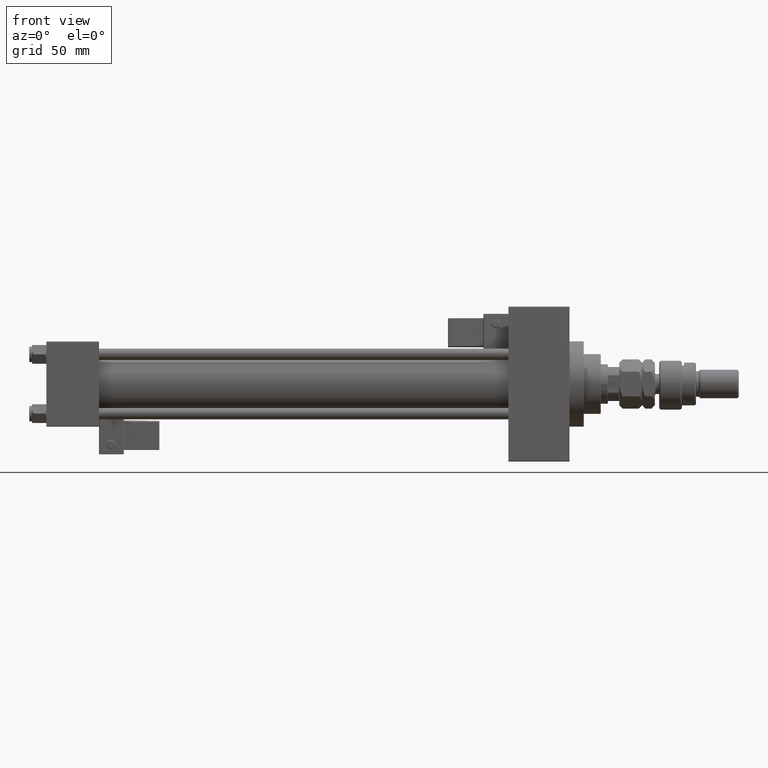
[diagram: clean part render]
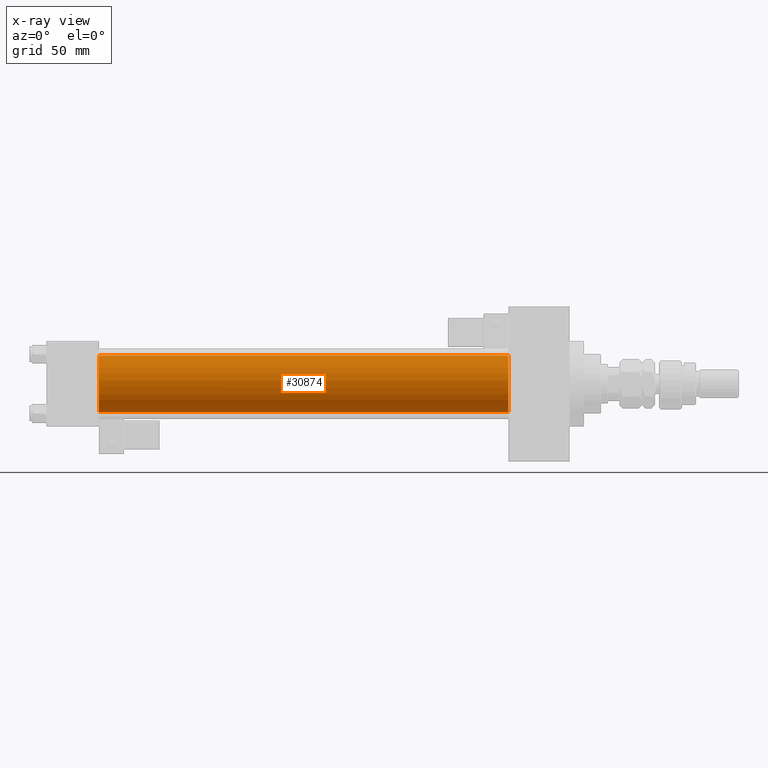
[diagram: x-ray — body ghosted, one internal face saturated and labeled with its STEP entity id]
A machine part, front view, then the same camera in x-ray: the body is ghosted and one INTERNAL B-rep face — a face not visible from any outside direction — is saturated and labeled: STEP entity #30874.
In plain terms, the highlighted cylindrical surface (edge-blend (fillet) strip) has radius 20 mm, axis along (-1, -0, -0).
Its self-contained STEP definition (entity closure, byte-faithful):
#410 = AXIS2_PLACEMENT_3D ( 'NONE', #13127, #21904, #38109 ) ;
#1475 = EDGE_LOOP ( 'NONE', ( #52215, #6880, #24655, #50834 ) ) ;
#1889 = DIRECTION ( 'NONE',  ( -1.000000000000000000, -0.000000000000000000, -0.000000000000000000 ) ) ;
#4715 = DIRECTION ( 'NONE',  ( -1.000000000000000000, -0.000000000000000000, -0.000000000000000000 ) ) ;
#6475 = DIRECTION ( 'NONE',  ( -1.000000000000000000, -0.000000000000000000, -0.000000000000000000 ) ) ;
#6880 = ORIENTED_EDGE ( 'NONE', *, *, #18562, .T. ) ;
#7343 = AXIS2_PLACEMENT_3D ( 'NONE', #43433, #6475, #10979 ) ;
#7969 = CARTESIAN_POINT ( 'NONE',  ( 37.00000000000000000, -2.602085213965210642E-15, 20.00000000000000000 ) ) ;
#10979 = DIRECTION ( 'NONE',  ( 0.000000000000000000, 0.000000000000000000, 1.000000000000000000 ) ) ;
#11779 = VERTEX_POINT ( 'NONE', #38268 ) ;
#13127 = CARTESIAN_POINT ( 'NONE',  ( 37.00000000000000000, -2.602085213965210642E-15, 0.000000000000000000 ) ) ;
#13750 = EDGE_CURVE ( 'NONE', #34232, #11779, #22494, .T. ) ;
#14280 = EDGE_CURVE ( 'NONE', #19206, #34232, #20662, .T. ) ;
#15893 = CARTESIAN_POINT ( 'NONE',  ( 324.9999999999999432, -2.602085213965210642E-15, 20.00000000000000000 ) ) ;
#16980 = EDGE_CURVE ( 'NONE', #19206, #19261, #29488, .T. ) ;
#17838 = LINE ( 'NONE', #25298, #23937 ) ;
#18562 = EDGE_CURVE ( 'NONE', #19261, #11779, #17838, .T. ) ;
#19206 = VERTEX_POINT ( 'NONE', #15893 ) ;
#19261 = VERTEX_POINT ( 'NONE', #45905 ) ;
#20662 = LINE ( 'NONE', #24918, #21617 ) ;
#21617 = VECTOR ( 'NONE', #4715, 1000.000000000000000 ) ;
#21904 = DIRECTION ( 'NONE',  ( 1.000000000000000000, 0.000000000000000000, 0.000000000000000000 ) ) ;
#22494 = CIRCLE ( 'NONE', #410, 20.00000000000000000 ) ;
#23937 = VECTOR ( 'NONE', #1889, 1000.000000000000000 ) ;
#24655 = ORIENTED_EDGE ( 'NONE', *, *, #13750, .F. ) ;
#24918 = CARTESIAN_POINT ( 'NONE',  ( 324.9999999999999432, -2.602085213965210642E-15, 20.00000000000000000 ) ) ;
#25298 = CARTESIAN_POINT ( 'NONE',  ( 324.9999999999999432, -1.527916156705042519E-16, -20.00000000000000000 ) ) ;
#29488 = CIRCLE ( 'NONE', #38812, 20.00000000000000000 ) ;
#30874 = ADVANCED_FACE ( 'NONE', ( #35708 ), #43967, .F. ) ;
#34232 = VERTEX_POINT ( 'NONE', #7969 ) ;
#35282 = DIRECTION ( 'NONE',  ( 1.000000000000000000, 0.000000000000000000, 0.000000000000000000 ) ) ;
#35708 = FACE_OUTER_BOUND ( 'NONE', #1475, .T. ) ;
#38109 = DIRECTION ( 'NONE',  ( 0.000000000000000000, 0.000000000000000000, -1.000000000000000000 ) ) ;
#38268 = CARTESIAN_POINT ( 'NONE',  ( 37.00000000000000000, -1.527916156705042519E-16, -20.00000000000000000 ) ) ;
#38812 = AXIS2_PLACEMENT_3D ( 'NONE', #39797, #35282, #43798 ) ;
#39797 = CARTESIAN_POINT ( 'NONE',  ( 324.9999999999999432, -2.602085213965210642E-15, 0.000000000000000000 ) ) ;
#43433 = CARTESIAN_POINT ( 'NONE',  ( 324.9999999999999432, -2.602085213965210642E-15, 0.000000000000000000 ) ) ;
#43798 = DIRECTION ( 'NONE',  ( 0.000000000000000000, 0.000000000000000000, -1.000000000000000000 ) ) ;
#43967 = CYLINDRICAL_SURFACE ( 'NONE', #7343, 20.00000000000000000 ) ;
#45905 = CARTESIAN_POINT ( 'NONE',  ( 324.9999999999999432, -1.527916156705042519E-16, -20.00000000000000000 ) ) ;
#50834 = ORIENTED_EDGE ( 'NONE', *, *, #14280, .F. ) ;
#52215 = ORIENTED_EDGE ( 'NONE', *, *, #16980, .T. ) ;